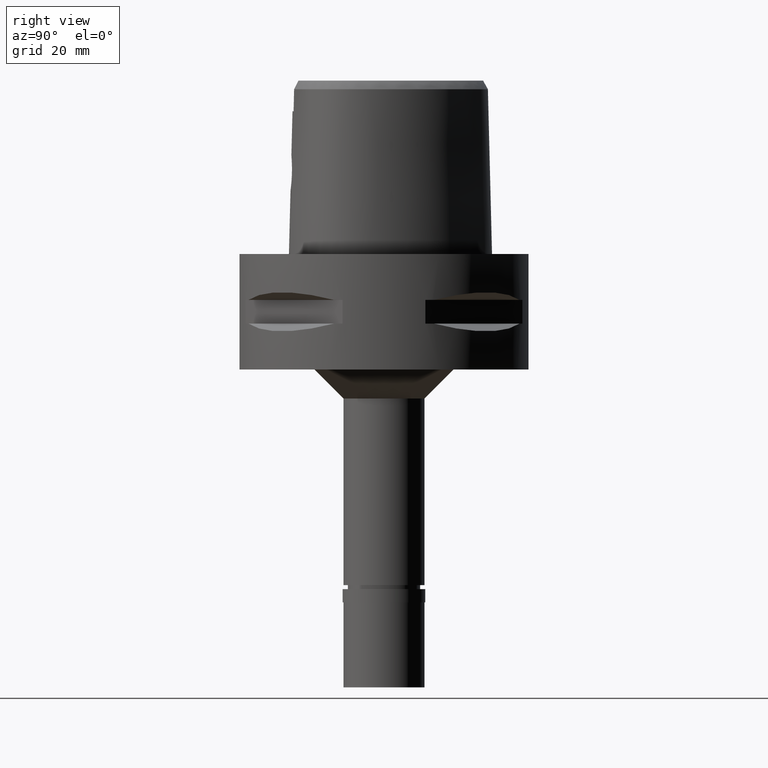
[diagram: clean part render]
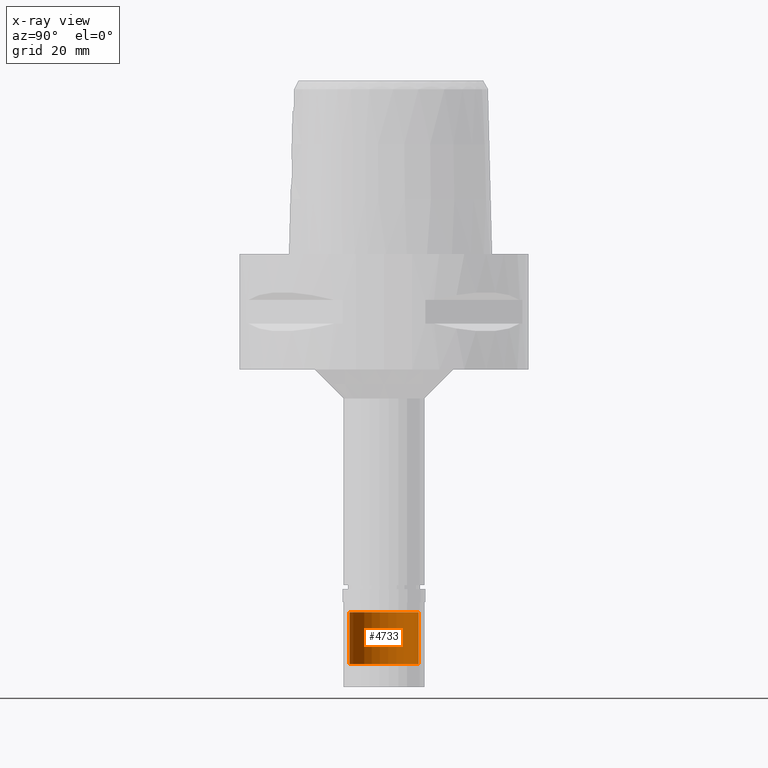
[diagram: x-ray — body ghosted, one internal face saturated and labeled with its STEP entity id]
A machine part, right view, then the same camera in x-ray: the body is ghosted and one INTERNAL B-rep face — a face not visible from any outside direction — is saturated and labeled: STEP entity #4733.
In plain terms, the highlighted cylindrical surface (edge-blend (fillet) strip) has radius 6 mm, axis along (0, 0, -1).
Its self-contained STEP definition (entity closure, byte-faithful):
#104 = DIRECTION ( 'NONE',  ( 0.0000000000000000000, 0.0000000000000000000, -1.000000000000000000 ) ) ;
#121 = CARTESIAN_POINT ( 'NONE',  ( 0.0000000000000000000, 6.000000000000000000, -62.00000000000000000 ) ) ;
#175 = EDGE_CURVE ( 'NONE', #2284, #962, #1805, .T. ) ;
#451 = CARTESIAN_POINT ( 'NONE',  ( 0.0000000000000000000, -6.000000000000000000, -71.00000000000000000 ) ) ;
#574 = FACE_OUTER_BOUND ( 'NONE', #3215, .T. ) ;
#770 = DIRECTION ( 'NONE',  ( 0.0000000000000000000, 0.0000000000000000000, -1.000000000000000000 ) ) ;
#813 = LINE ( 'NONE', #1952, #2697 ) ;
#843 = CIRCLE ( 'NONE', #1555, 6.000000000000000000 ) ;
#908 = ORIENTED_EDGE ( 'NONE', *, *, #175, .T. ) ;
#947 = DIRECTION ( 'NONE',  ( 0.0000000000000000000, 0.0000000000000000000, 1.000000000000000000 ) ) ;
#962 = VERTEX_POINT ( 'NONE', #451 ) ;
#1530 = ORIENTED_EDGE ( 'NONE', *, *, #4520, .T. ) ;
#1555 = AXIS2_PLACEMENT_3D ( 'NONE', #2564, #4463, #2587 ) ;
#1656 = CYLINDRICAL_SURFACE ( 'NONE', #1939, 6.000000000000000000 ) ;
#1762 = DIRECTION ( 'NONE',  ( 0.0000000000000000000, 1.000000000000000000, 0.0000000000000000000 ) ) ;
#1805 = CIRCLE ( 'NONE', #4535, 6.000000000000000000 ) ;
#1939 = AXIS2_PLACEMENT_3D ( 'NONE', #3553, #104, #3830 ) ;
#1952 = CARTESIAN_POINT ( 'NONE',  ( 0.0000000000000000000, 6.000000000000000000, -62.00000000000000000 ) ) ;
#2028 = VERTEX_POINT ( 'NONE', #121 ) ;
#2123 = CARTESIAN_POINT ( 'NONE',  ( 0.0000000000000000000, 1.268121760516999976E-14, -71.00000000000000000 ) ) ;
#2284 = VERTEX_POINT ( 'NONE', #4707 ) ;
#2332 = CARTESIAN_POINT ( 'NONE',  ( 0.0000000000000000000, -6.000000000000000000, -62.00000000000000000 ) ) ;
#2562 = EDGE_CURVE ( 'NONE', #2028, #2284, #813, .T. ) ;
#2564 = CARTESIAN_POINT ( 'NONE',  ( 0.0000000000000000000, 1.268121760516999976E-14, -62.00000000000000000 ) ) ;
#2587 = DIRECTION ( 'NONE',  ( 0.0000000000000000000, -1.000000000000000000, 0.0000000000000000000 ) ) ;
#2697 = VECTOR ( 'NONE', #770, 1000.000000000000000 ) ;
#2797 = CARTESIAN_POINT ( 'NONE',  ( 0.0000000000000000000, -6.000000000000000000, -62.00000000000000000 ) ) ;
#3215 = EDGE_LOOP ( 'NONE', ( #908, #3216, #1530, #4809 ) ) ;
#3216 = ORIENTED_EDGE ( 'NONE', *, *, #4079, .F. ) ;
#3553 = CARTESIAN_POINT ( 'NONE',  ( 0.0000000000000000000, 1.268121760516999976E-14, 3.550000000000000266 ) ) ;
#3830 = DIRECTION ( 'NONE',  ( 0.0000000000000000000, -1.000000000000000000, 0.0000000000000000000 ) ) ;
#3980 = VECTOR ( 'NONE', #4623, 1000.000000000000000 ) ;
#4079 = EDGE_CURVE ( 'NONE', #4493, #962, #4208, .T. ) ;
#4208 = LINE ( 'NONE', #2332, #3980 ) ;
#4463 = DIRECTION ( 'NONE',  ( 0.0000000000000000000, 0.0000000000000000000, -1.000000000000000000 ) ) ;
#4493 = VERTEX_POINT ( 'NONE', #2797 ) ;
#4520 = EDGE_CURVE ( 'NONE', #4493, #2028, #843, .T. ) ;
#4535 = AXIS2_PLACEMENT_3D ( 'NONE', #2123, #947, #1762 ) ;
#4623 = DIRECTION ( 'NONE',  ( 0.0000000000000000000, 0.0000000000000000000, -1.000000000000000000 ) ) ;
#4707 = CARTESIAN_POINT ( 'NONE',  ( 0.0000000000000000000, 6.000000000000000000, -71.00000000000000000 ) ) ;
#4733 = ADVANCED_FACE ( 'NONE', ( #574 ), #1656, .T. ) ;
#4809 = ORIENTED_EDGE ( 'NONE', *, *, #2562, .T. ) ;